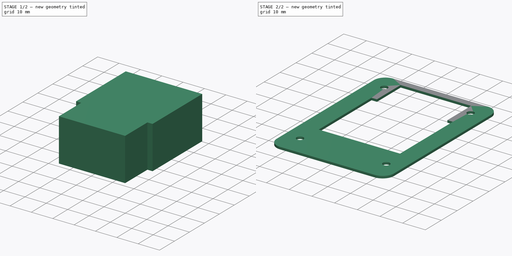
[diagram: build sequence overview — one tinted view per stage of 2, left to right]
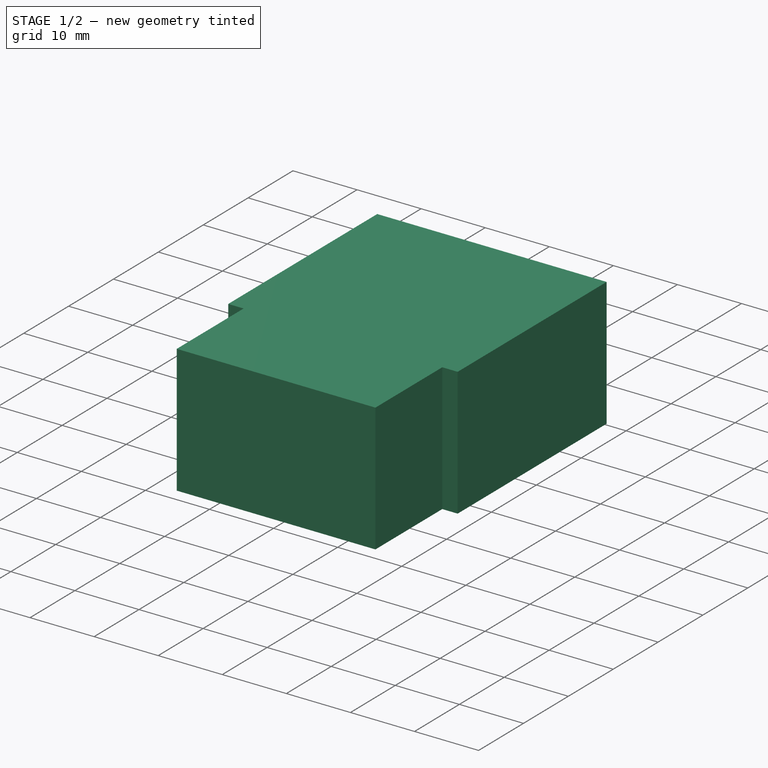
[diagram: stage 1 of 2 — iso view after this stage's code; geometry added in this stage tinted green]
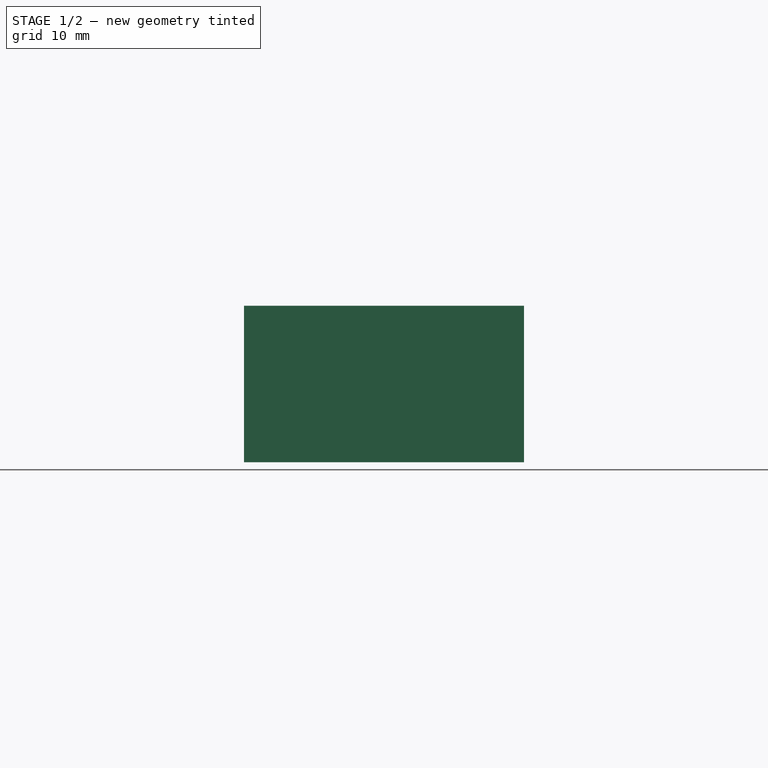
[diagram: stage 1 of 2 — front view after this stage's code; geometry added in this stage tinted green]
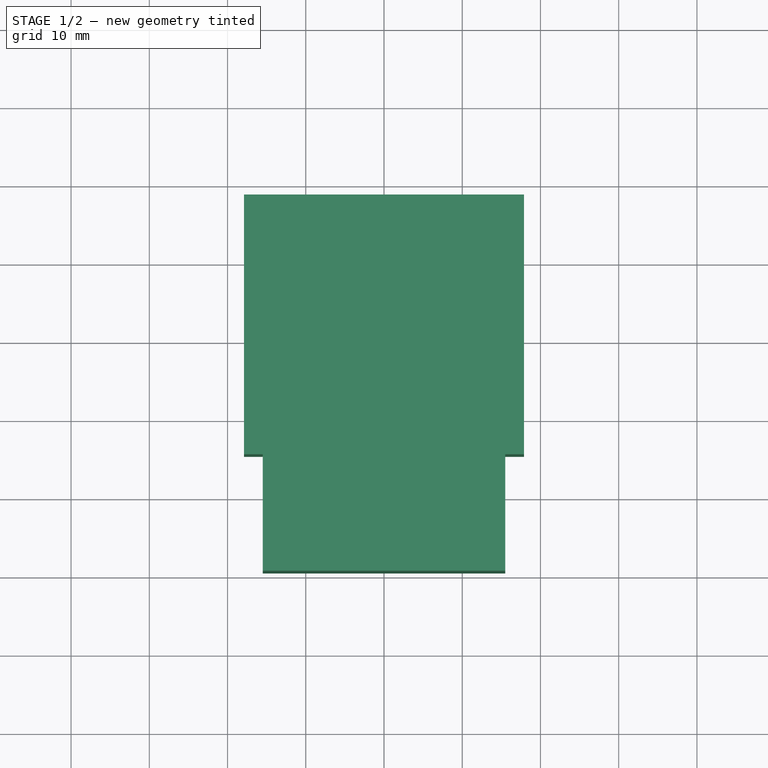
[diagram: stage 1 of 2 — top view after this stage's code; geometry added in this stage tinted green]
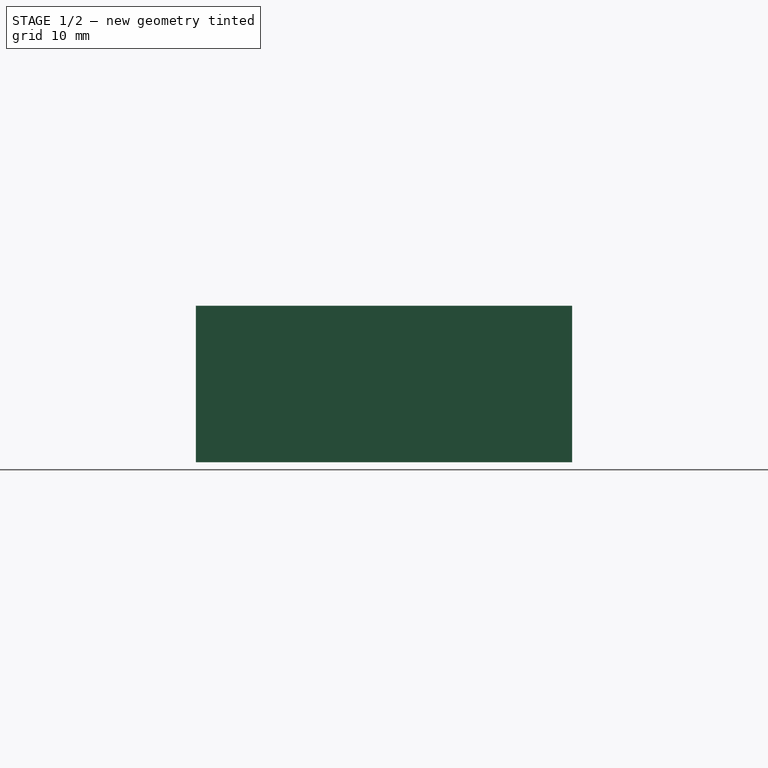
[diagram: stage 1 of 2 — right view after this stage's code; geometry added in this stage tinted green]
FCSTD DOCUMENT  (FreeCAD 0.18R16131 (Git))
Label: makita10.8
License: All rights reserved
LicenseURL: http://en.wikipedia.org/wiki/All_rights_reserved
objects: Sketcher::SketchObject×3, PartDesign::Pad×2, PartDesign::Body×1, Part::Feature×1, Part::Cut×1, Part::Extrusion×1
note: 11 computed .brp shape members not serialized (recipe doc carries the construction recipe); baked Part::Feature solids carry a one-line shape summary decoded from their .brp

FEATURE [Sketcher::SketchObject] Sketch
  MapMode = 5
  Support = -> [XY_Plane]
  sketch-geometry (4):
    g0: LineSegment StartX=-17.9 StartY=38.6601 StartZ=0 EndX=17.9 EndY=38.6601 EndZ=0
    g1: LineSegment StartX=17.9 StartY=38.6601 StartZ=0 EndX=17.9 EndY=5.46005 EndZ=0
    g2: LineSegment StartX=17.9 StartY=5.46005 StartZ=0 EndX=-17.9 EndY=5.46005 EndZ=0
    g3: LineSegment StartX=-17.9 StartY=5.46005 StartZ=0 EndX=-17.9 EndY=38.6601 EndZ=0
  constraints (10):
    c: Coincident(g0,g1)
    c: Coincident(g1,g2)
    c: Coincident(g2,g3)
    c: Coincident(g3,g0)
    c: Horizontal(g2)
    c: Vertical(g1)
    c: Vertical(g3)
    c: Symmetric(g0,g0,g-2)
    c: DistanceX(g0,g0) = 35.8
    c: DistanceY(g1,g1) = 33.2
FEATURE [PartDesign::Pad] Pad
  Length = 20
  Length2 = 100
  Profile = -> Sketch
  Type = 0
FEATURE [Sketcher::SketchObject] Sketch001
  ExternalGeometry = -> [Pad]
  MapMode = 5
  Placement = pos=(0,0,20) rot=(0,0,1;0rad)
  Support = -> [Pad]
  sketch-geometry (4):
    g0: LineSegment StartX=-15.5 StartY=13.6601 StartZ=0 EndX=15.5 EndY=13.6601 EndZ=0
    g1: LineSegment StartX=15.5 StartY=13.6601 StartZ=0 EndX=15.5 EndY=-9.43995 EndZ=0
    g2: LineSegment StartX=15.5 StartY=-9.43995 StartZ=0 EndX=-15.5 EndY=-9.43995 EndZ=0
    g3: LineSegment StartX=-15.5 StartY=-9.43995 StartZ=0 EndX=-15.5 EndY=13.6601 EndZ=0
  constraints (11):
    c: Coincident(g0,g1)
    c: Coincident(g1,g2)
    c: Coincident(g2,g3)
    c: Coincident(g3,g0)
    c: Horizontal(g2)
    c: Vertical(g1)
    c: Vertical(g3)
    c: Symmetric(g0,g0,g-2)
    c: DistanceX(g0,g0) = 31
    c: DistanceY(g1,g1) = 23.1
    c: DistanceY(g1,g-3) = 48.1
FEATURE [PartDesign::Pad] Pad001
  BaseFeature = -> Pad
  Length = 20
  Length2 = 100
  Profile = -> Sketch001
  Reversed = true
  Type = 0
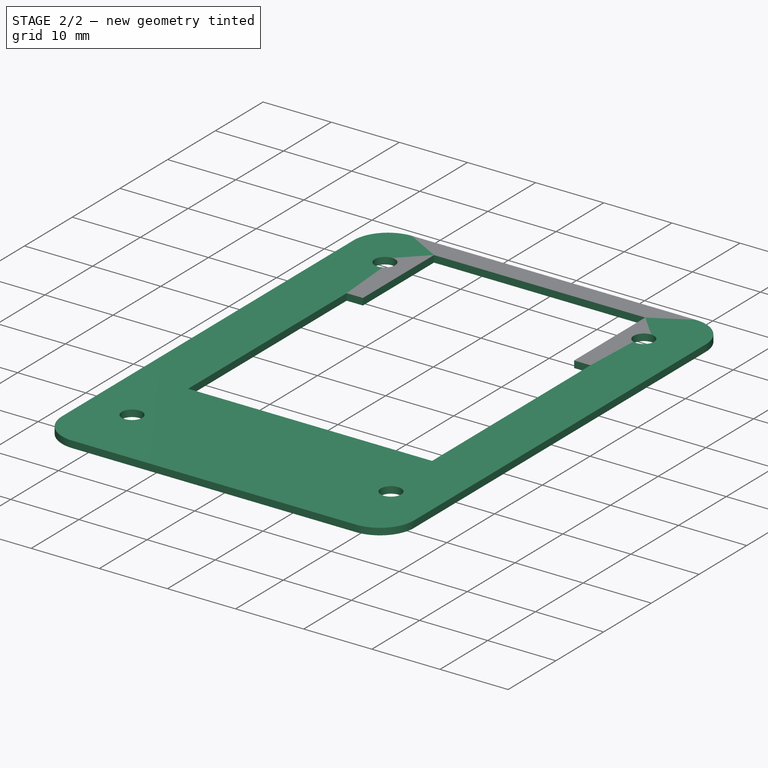
[diagram: stage 2 of 2 — iso view after this stage's code; geometry added in this stage tinted green]
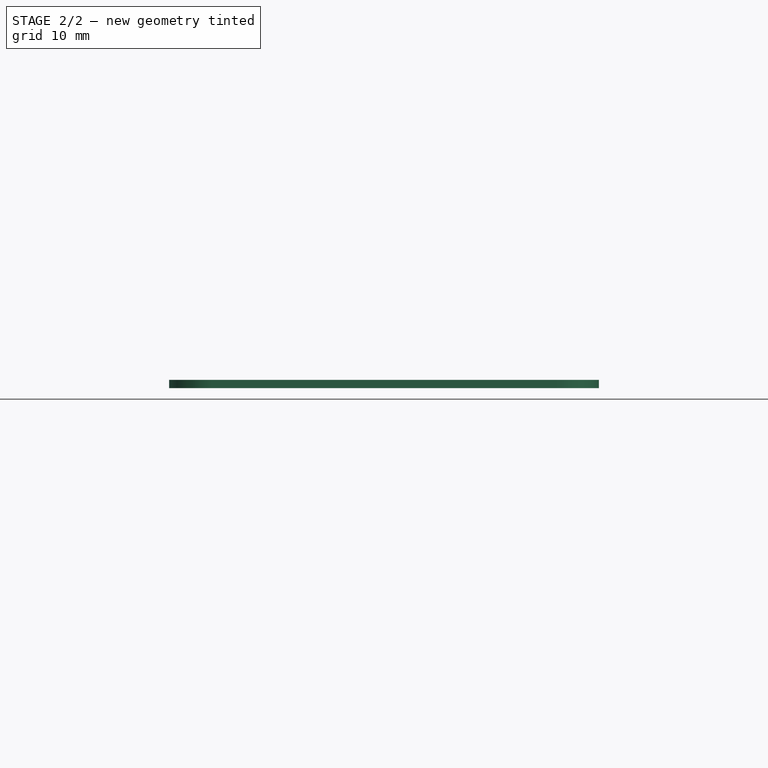
[diagram: stage 2 of 2 — front view after this stage's code; geometry added in this stage tinted green]
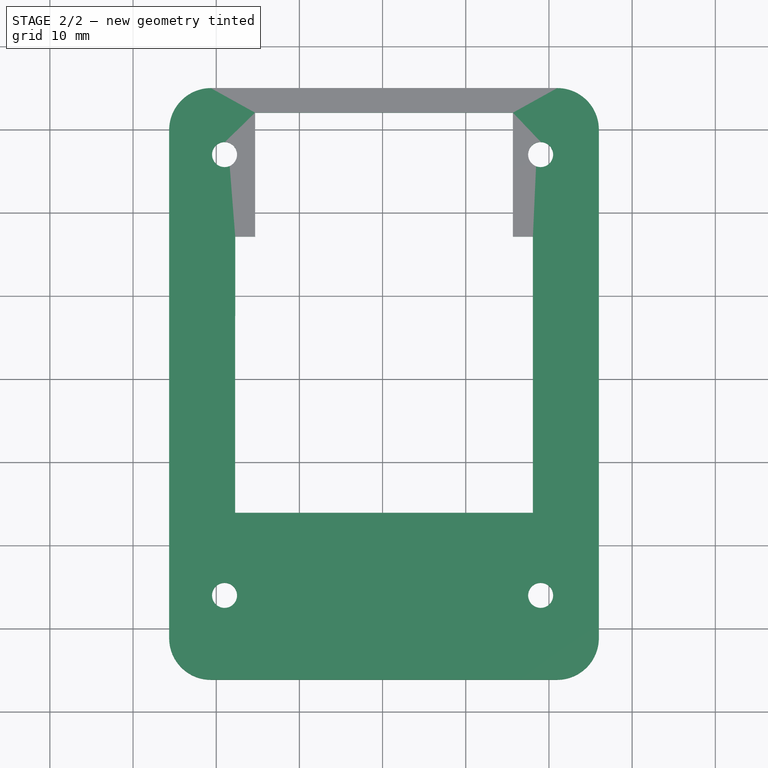
[diagram: stage 2 of 2 — top view after this stage's code; geometry added in this stage tinted green]
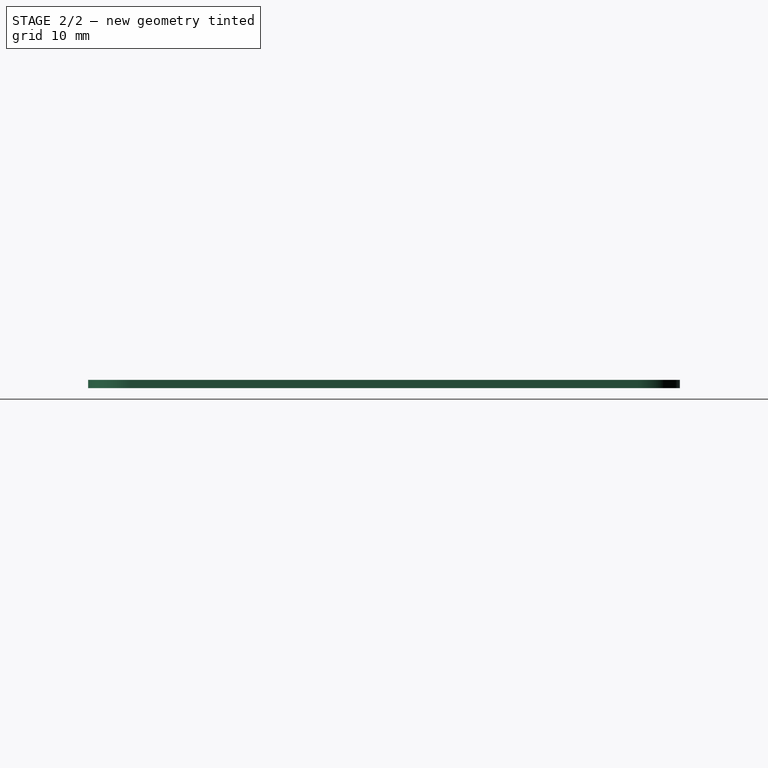
[diagram: stage 2 of 2 — right view after this stage's code; geometry added in this stage tinted green]
FEATURE [PartDesign::Body] Body
  Group = -> [Sketch,Pad,Sketch001,Pad001]
  Origin = -> Origin
  Placement = pos=(0.17,22.6,0) rot=(0,0,1;3.14159rad)
  Tip = -> Pad001
FEATURE [Part::Feature] Makita_CXT_12V_Battery_Mount001_solid  label="Makita_CXT_12V_Battery_Mount001 (Solid)"
  shape: bbox 51.66 x 71.15 x 15.5 mm, 1276 faces (baked)
FEATURE [Part::Cut] Cut
  Base = -> Makita_CXT_12V_Battery_Mount001_solid
  Tool = -> Body
FEATURE [Sketcher::SketchObject] Sketch002
  ExternalGeometry = -> [Cut]
  sketch-geometry (24):
    g0: GeomPoint X=-20.6102 Y=29.9502 Z=0
    g1: ArcOfCircle CenterX=-20.6102 CenterY=29.9502 CenterZ=0 NormalX=0 NormalY=0 NormalZ=1 AngleXU=0 Radius=5.05 StartAngle=1.58065 EndAngle=3.13174
    g2: LineSegment StartX=-20.66 StartY=35 StartZ=0 EndX=21 EndY=35 EndZ=0
    g3: GeomPoint X=21 Y=30 Z=0
    g4: ArcOfCircle CenterX=21 CenterY=30 CenterZ=0 NormalX=0 NormalY=0 NormalZ=1 AngleXU=0 Radius=5 StartAngle=3.66e-14 EndAngle=1.5708
    g5: GeomPoint X=-20.6405 Y=-31.13 Z=0
    g6: GeomPoint X=20.9707 Y=-31.1201 Z=0
    g7: ArcOfCircle CenterX=20.9707 CenterY=-31.1201 CenterZ=0 NormalX=0 NormalY=0 NormalZ=1 AngleXU=0 Radius=5.03 StartAngle=4.71822 EndAngle=6.2671
    g8: ArcOfCircle CenterX=-20.6405 CenterY=-31.13 CenterZ=0 NormalX=0 NormalY=0 NormalZ=1 AngleXU=0 Radius=5.02 StartAngle=3.15573 EndAngle=4.7085
    g9: LineSegment StartX=21 StartY=-36.15 StartZ=0 EndX=-20.66 EndY=-36.15 EndZ=0
    g10: LineSegment StartX=26 StartY=-31.201 StartZ=0 EndX=26 EndY=30 EndZ=0
    g11: LineSegment StartX=-25.66 StartY=30 StartZ=0 EndX=-25.66 EndY=-31.201 EndZ=0
    g12: Circle CenterX=-19 CenterY=-26 CenterZ=0 NormalX=0 NormalY=0 NormalZ=1 AngleXU=0 Radius=1.50144
    g13: Circle CenterX=18.9996 CenterY=-26 CenterZ=0 NormalX=0 NormalY=0 NormalZ=1 AngleXU=0 Radius=1.50138
    g14: Circle CenterX=19 CenterY=27 CenterZ=0 NormalX=0 NormalY=0 NormalZ=1 AngleXU=0 Radius=1.50138
    g15: Circle CenterX=-19 CenterY=26.9999 CenterZ=0 NormalX=0 NormalY=0 NormalZ=1 AngleXU=0 Radius=1.50142
    g16: LineSegment StartX=-15.33 StartY=32.0399 StartZ=0 EndX=15.67 EndY=32.0399 EndZ=0
    g17: LineSegment StartX=-15.33 StartY=17.1399 StartZ=0 EndX=-15.33 EndY=32.0399 EndZ=0
    g18: LineSegment StartX=15.67 StartY=17.1399 StartZ=0 EndX=15.67 EndY=32.0399 EndZ=0
    g19: LineSegment StartX=18.07 StartY=17.1399 StartZ=0 EndX=15.67 EndY=17.1399 EndZ=0
    g20: LineSegment StartX=18.07 StartY=17.1399 StartZ=0 EndX=18.07 EndY=-16.0601 EndZ=0
    g21: LineSegment StartX=-17.73 StartY=-16.0601 StartZ=0 EndX=18.07 EndY=-16.0601 EndZ=0
    g22: LineSegment StartX=-17.73 StartY=-16.0601 StartZ=0 EndX=-17.7162 EndY=17.1399 EndZ=0
    g23: LineSegment StartX=-17.7162 StartY=17.1399 StartZ=0 EndX=-15.33 EndY=17.1399 EndZ=0
  constraints (52):
    c: Coincident(g1,g0)
    c: Coincident(g1,g-4)
    c: Coincident(g1,g-15)
    c: Coincident(g2,g1)
    c: Coincident(g2,g-3)
    c: Coincident(g4,g3)
    c: Coincident(g4,g2)
    c: Coincident(g4,g-24)
    c: Coincident(g7,g6)
    c: Coincident(g7,g-28)
    c: Coincident(g7,g-31)
    c: Coincident(g8,g5)
    c: Coincident(g8,g-19)
    c: Coincident(g8,g-18)
    c: Coincident(g9,g7)
    c: Coincident(g9,g8)
    c: Coincident(g10,g7)
    c: Coincident(g10,g4)
    c: Coincident(g11,g1)
    c: Coincident(g11,g8)
    c: Radius(g8) = 5.02
    c: Radius(g7) = 5.03
    c: Radius(g4) = 5
    c: Radius(g1) = 5.05
    c: PointOnObject(g-43,g12)
    c: PointOnObject(g-45,g12)
    c: PointOnObject(g-44,g12)
    c: PointOnObject(g-40,g13)
    c: PointOnObject(g-42,g13)
    c: PointOnObject(g-41,g13)
    c: PointOnObject(g-37,g14)
    c: PointOnObject(g-39,g14)
    c: PointOnObject(g-38,g14)
    c: PointOnObject(g-35,g15)
    c: PointOnObject(g-34,g15)
    c: PointOnObject(g-36,g15)
    c: Coincident(g16,g-52)
    c: Coincident(g16,g-52)
    c: Coincident(g17,g-46)
    c: Coincident(g17,g16)
    c: Coincident(g18,g-47)
    c: Coincident(g18,g16)
    c: Coincident(g19,g-51)
    c: Coincident(g19,g18)
    c: Coincident(g20,g19)
    c: Coincident(g20,g-49)
    c: Coincident(g21,g-48)
    c: Coincident(g21,g20)
    c: Coincident(g22,g21)
    c: Coincident(g22,g-50)
    c: Coincident(g23,g22)
    c: Coincident(g23,g17)
FEATURE [Part::Extrusion] Extrude001
  Base = -> Sketch002
  Dir = (0,0,1)
  DirMode = 2
  FaceMakerClass = Part::FaceMakerBullseye
  LengthFwd = 0
  LengthRev = 1
  Solid = true
  Symmetric = false
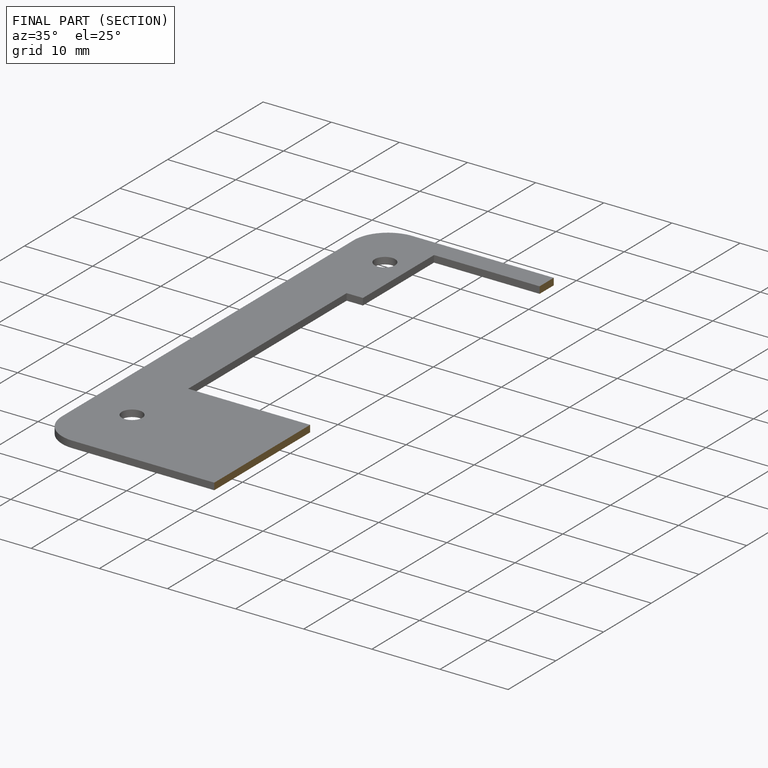
[diagram: finished part — half-section view (interior)]
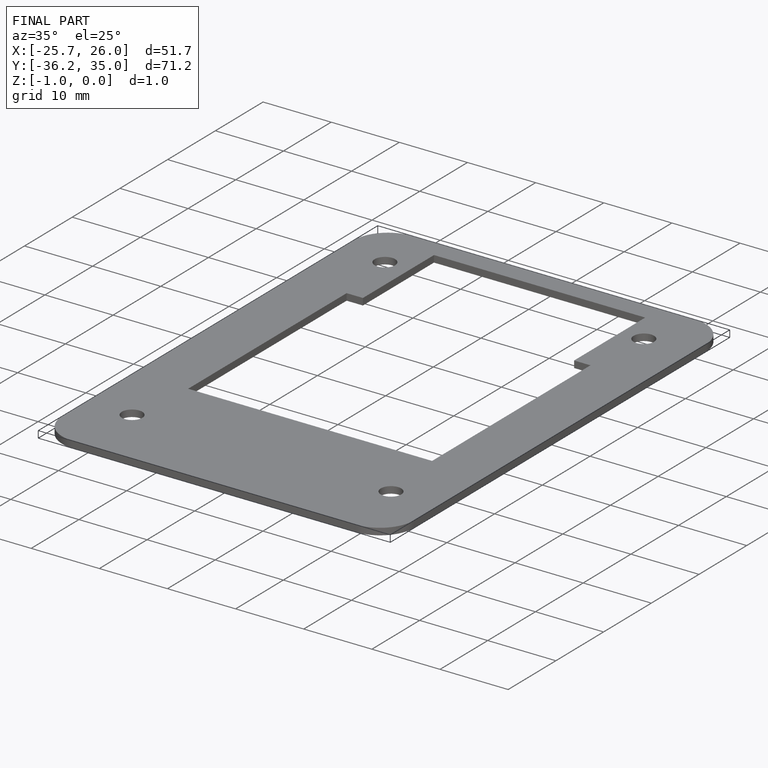
[diagram: finished part — iso view with bounding-box wireframe]
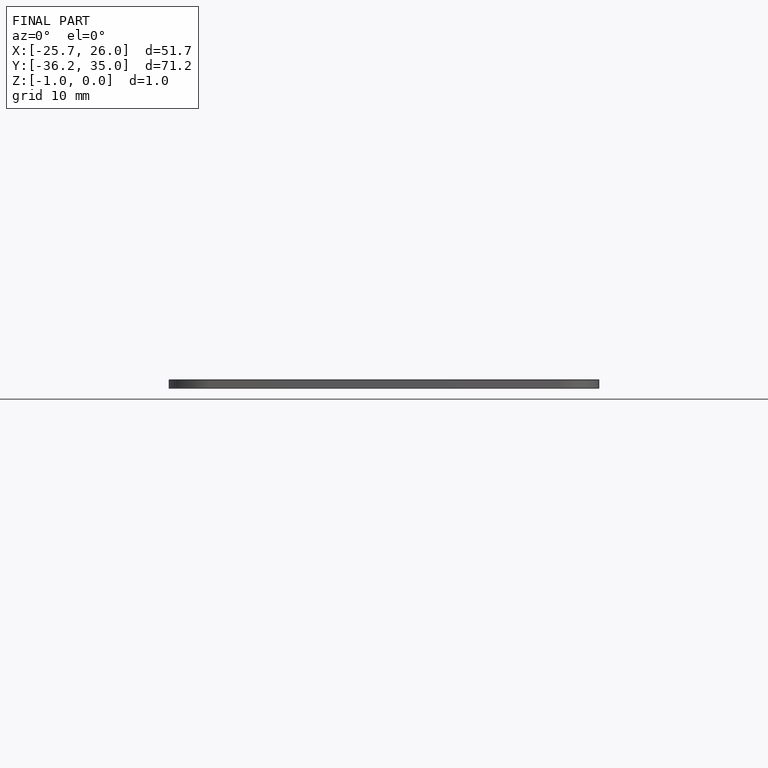
[diagram: finished part — front view with bounding-box wireframe]
